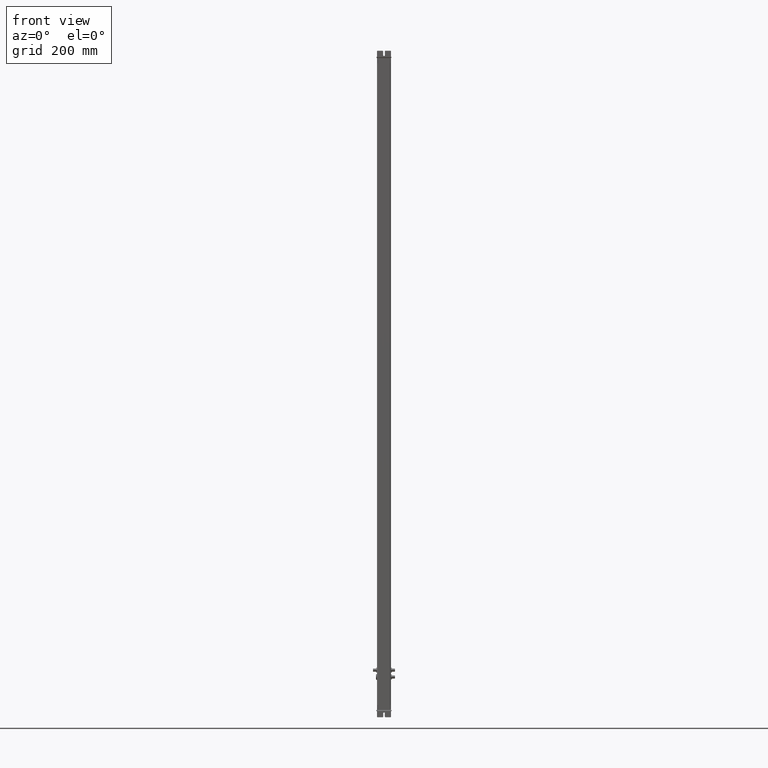
[diagram: clean part render]
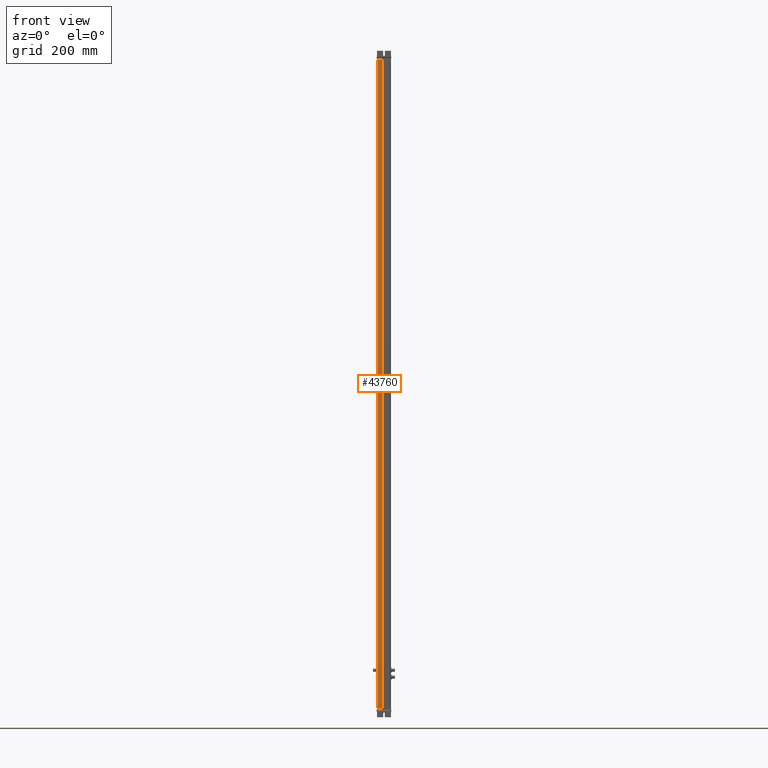
[diagram: same view with one face highlighted and labeled with its STEP entity id]
A machine part, front view. The second image highlights one B-rep face of the part: STEP entity #43760.
In plain terms, the highlighted planar face has unit normal (0, -1, 0).
Its self-contained STEP definition (entity closure, byte-faithful):
#43708=CARTESIAN_POINT('Vertex',(617.246770587,120.060780121,0.)) ;
#43711=CARTESIAN_POINT('Line Origine',(617.246770587,120.060780121,1231.)) ;
#43715=CARTESIAN_POINT('Vertex',(617.246770587,120.060780121,2462.)) ;
#43730=CARTESIAN_POINT('Axis2P3D Location',(647.67209889,120.060780121,0.)) ;
#43735=CARTESIAN_POINT('Line Origine',(624.483052148,120.060780121,0.)) ;
#43739=CARTESIAN_POINT('Vertex',(631.719333708,120.060780121,0.)) ;
#43742=CARTESIAN_POINT('Line Origine',(631.719333708,120.060780121,1231.)) ;
#43746=CARTESIAN_POINT('Vertex',(631.719333708,120.060780121,2462.)) ;
#43749=CARTESIAN_POINT('Line Origine',(624.483052148,120.060780121,2462.)) ;
#43712=DIRECTION('Vector Direction',(0.,0.,1.)) ;
#43731=DIRECTION('Axis2P3D Direction',(0.,-1.,0.)) ;
#43732=DIRECTION('Axis2P3D XDirection',(1.,0.,0.)) ;
#43736=DIRECTION('Vector Direction',(1.,0.,0.)) ;
#43743=DIRECTION('Vector Direction',(0.,0.,1.)) ;
#43750=DIRECTION('Vector Direction',(1.,0.,0.)) ;
#43733=AXIS2_PLACEMENT_3D('Plane Axis2P3D',#43730,#43731,#43732) ;
#43755=ORIENTED_EDGE('',*,*,#43717,.F.) ;
#43756=ORIENTED_EDGE('',*,*,#43741,.T.) ;
#43757=ORIENTED_EDGE('',*,*,#43748,.T.) ;
#43758=ORIENTED_EDGE('',*,*,#43753,.F.) ;
#43713=VECTOR('Line Direction',#43712,1.) ;
#43737=VECTOR('Line Direction',#43736,1.) ;
#43744=VECTOR('Line Direction',#43743,1.) ;
#43751=VECTOR('Line Direction',#43750,1.) ;
#43760=ADVANCED_FACE('Body.2',(#43759),#43734,.T.) ;
#43717=EDGE_CURVE('',#43709,#43716,#43714,.T.) ;
#43741=EDGE_CURVE('',#43709,#43740,#43738,.T.) ;
#43748=EDGE_CURVE('',#43740,#43747,#43745,.T.) ;
#43753=EDGE_CURVE('',#43716,#43747,#43752,.T.) ;
#43754=EDGE_LOOP('',(#43755,#43756,#43757,#43758)) ;
#43759=FACE_OUTER_BOUND('',#43754,.T.) ;
#43714=LINE('Line',#43711,#43713) ;
#43738=LINE('Line',#43735,#43737) ;
#43745=LINE('Line',#43742,#43744) ;
#43752=LINE('Line',#43749,#43751) ;
#43734=PLANE('Plane',#43733) ;
#43709=VERTEX_POINT('',#43708) ;
#43716=VERTEX_POINT('',#43715) ;
#43740=VERTEX_POINT('',#43739) ;
#43747=VERTEX_POINT('',#43746) ;